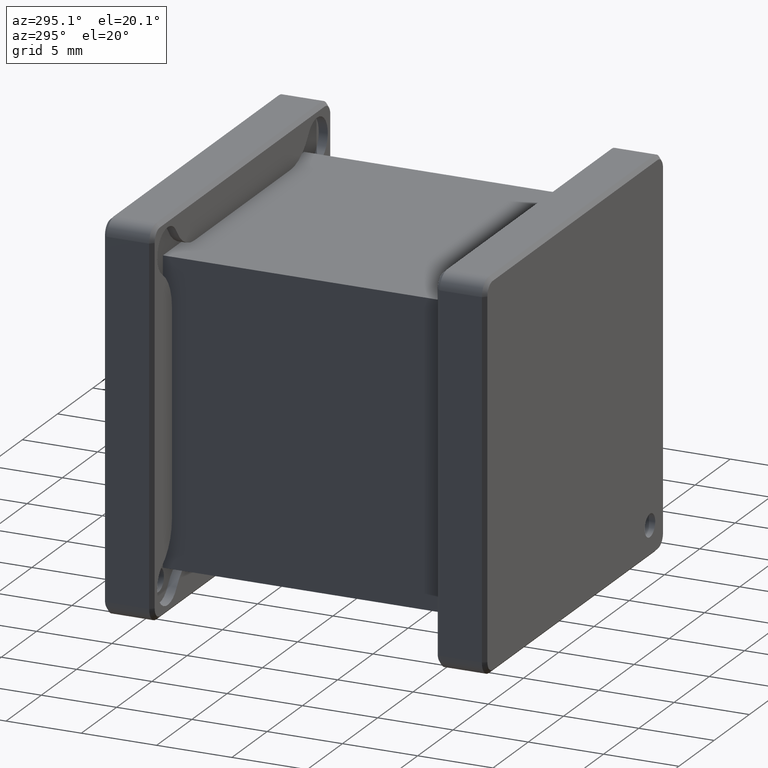
[diagram: clean part render]
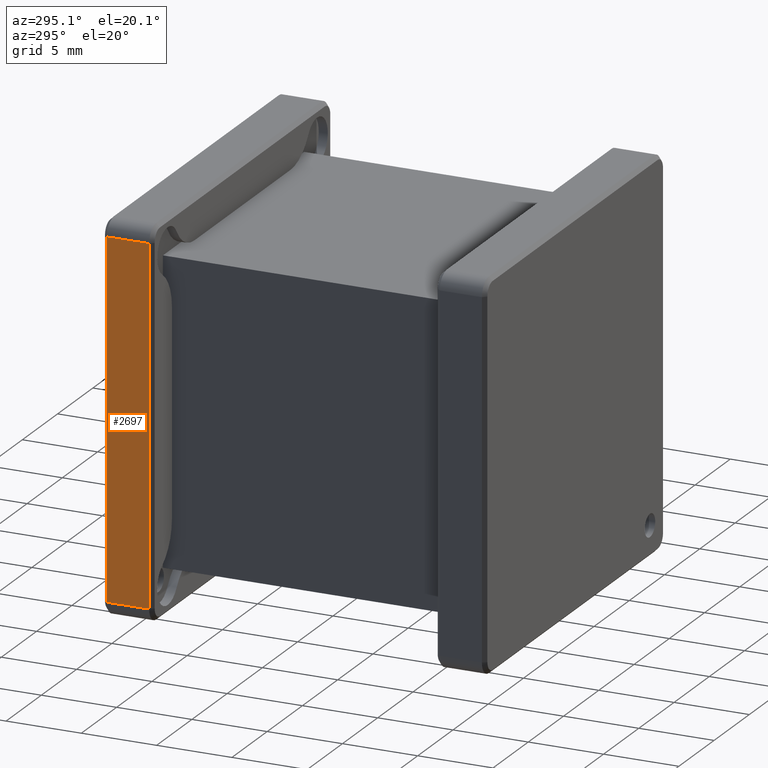
[diagram: same view with one face highlighted and labeled with its STEP entity id]
A machine part, auxiliary view. The second image highlights one B-rep face of the part: STEP entity #2697.
In plain terms, the highlighted planar face has unit normal (1, 0, 0).
Its self-contained STEP definition (entity closure, byte-faithful):
#227 = VERTEX_POINT ( 'NONE', #1303 ) ;
#378 = EDGE_LOOP ( 'NONE', ( #488, #1700, #2997, #3379 ) ) ;
#488 = ORIENTED_EDGE ( 'NONE', *, *, #1525, .T. ) ;
#640 = EDGE_CURVE ( 'NONE', #3337, #227, #1918, .T. ) ;
#647 = DIRECTION ( 'NONE',  ( 0.000000000000000000, -1.000000000000000000, 0.000000000000000000 ) ) ;
#657 = AXIS2_PLACEMENT_3D ( 'NONE', #2838, #3860, #1930 ) ;
#664 = CARTESIAN_POINT ( 'NONE',  ( -12.70000000000020535, 1.399999999999998579, -11.70000000000010232 ) ) ;
#717 = VECTOR ( 'NONE', #647, 1000.000000000000000 ) ;
#721 = LINE ( 'NONE', #664, #974 ) ;
#961 = DIRECTION ( 'NONE',  ( 0.000000000000000000, 0.000000000000000000, 1.000000000000000000 ) ) ;
#974 = VECTOR ( 'NONE', #2918, 1000.000000000000000 ) ;
#1303 = CARTESIAN_POINT ( 'NONE',  ( -12.70000000000020535, 1.399999999999998579, 11.70000000000009877 ) ) ;
#1361 = LINE ( 'NONE', #1672, #1806 ) ;
#1371 = CARTESIAN_POINT ( 'NONE',  ( -12.70000000000020535, 1.649999999999998579, -11.70000000000010232 ) ) ;
#1378 = CARTESIAN_POINT ( 'NONE',  ( -12.70000000000020535, 1.399999999999998579, -11.70000000000010232 ) ) ;
#1525 = EDGE_CURVE ( 'NONE', #2018, #3546, #1785, .T. ) ;
#1598 = PLANE ( 'NONE',  #657 ) ;
#1672 = CARTESIAN_POINT ( 'NONE',  ( -12.70000000000020535, -1.399999999999998579, -12.70000000000020179 ) ) ;
#1700 = ORIENTED_EDGE ( 'NONE', *, *, #3077, .T. ) ;
#1785 = LINE ( 'NONE', #1371, #717 ) ;
#1806 = VECTOR ( 'NONE', #961, 1000.000000000000000 ) ;
#1918 = LINE ( 'NONE', #4105, #3426 ) ;
#1930 = DIRECTION ( 'NONE',  ( 0.000000000000000000, 0.000000000000000000, -1.000000000000000000 ) ) ;
#2018 = VERTEX_POINT ( 'NONE', #1378 ) ;
#2442 = FACE_OUTER_BOUND ( 'NONE', #378, .T. ) ;
#2501 = DIRECTION ( 'NONE',  ( -0.000000000000000000, 1.000000000000000000, -0.000000000000000000 ) ) ;
#2549 = CARTESIAN_POINT ( 'NONE',  ( -12.70000000000020535, -1.399999999999998579, -11.70000000000010232 ) ) ;
#2697 = ADVANCED_FACE ( 'NONE', ( #2442 ), #1598, .F. ) ;
#2838 = CARTESIAN_POINT ( 'NONE',  ( -12.70000000000020535, 1.649999999999998579, -12.70000000000020179 ) ) ;
#2918 = DIRECTION ( 'NONE',  ( 0.000000000000000000, 0.000000000000000000, -1.000000000000000000 ) ) ;
#2997 = ORIENTED_EDGE ( 'NONE', *, *, #640, .T. ) ;
#3015 = CARTESIAN_POINT ( 'NONE',  ( -12.70000000000020535, -1.399999999999998579, 11.70000000000009877 ) ) ;
#3077 = EDGE_CURVE ( 'NONE', #3546, #3337, #1361, .T. ) ;
#3159 = EDGE_CURVE ( 'NONE', #227, #2018, #721, .T. ) ;
#3337 = VERTEX_POINT ( 'NONE', #3015 ) ;
#3379 = ORIENTED_EDGE ( 'NONE', *, *, #3159, .T. ) ;
#3426 = VECTOR ( 'NONE', #2501, 1000.000000000000000 ) ;
#3546 = VERTEX_POINT ( 'NONE', #2549 ) ;
#3860 = DIRECTION ( 'NONE',  ( 1.000000000000000000, 0.000000000000000000, 0.000000000000000000 ) ) ;
#4105 = CARTESIAN_POINT ( 'NONE',  ( -12.70000000000020535, 1.649999999999998579, 11.70000000000009877 ) ) ;